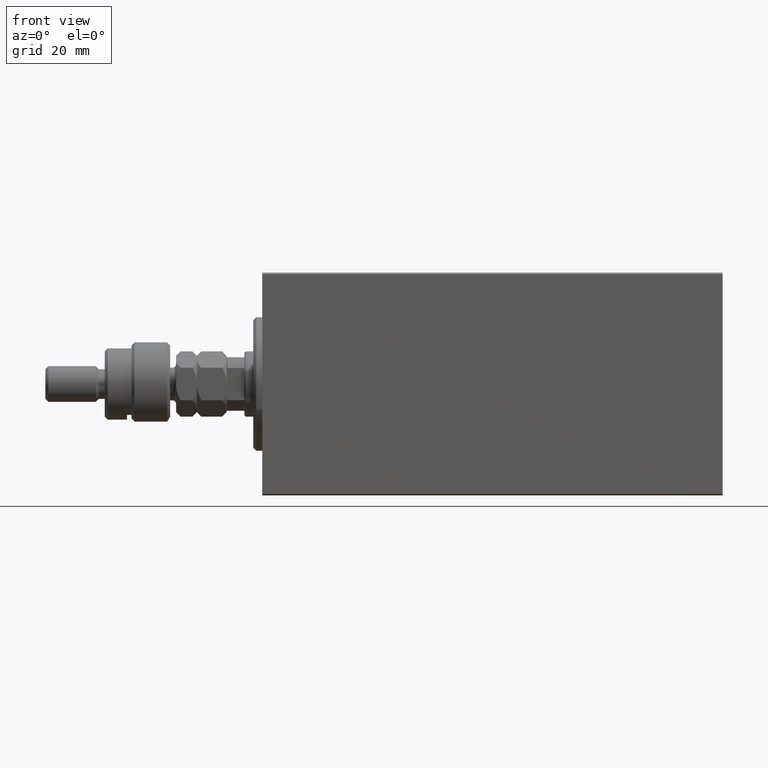
[diagram: clean part render]
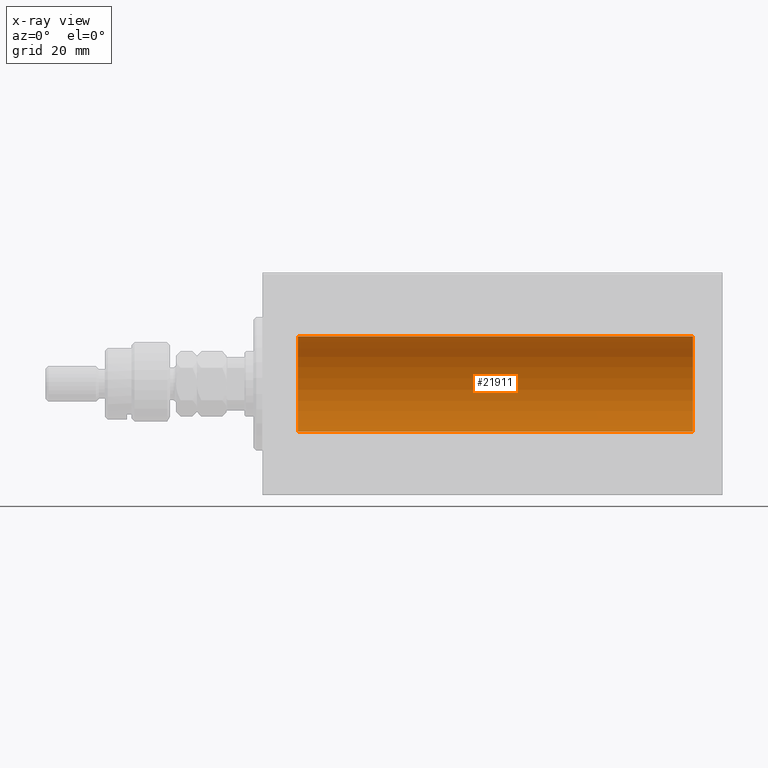
[diagram: x-ray — body ghosted, one internal face saturated and labeled with its STEP entity id]
A machine part, front view, then the same camera in x-ray: the body is ghosted and one INTERNAL B-rep face — a face not visible from any outside direction — is saturated and labeled: STEP entity #21911.
In plain terms, the highlighted cylindrical surface (partial cylindrical patch) has radius 16 mm, axis along (-1, -0, -0).
Its self-contained STEP definition (entity closure, byte-faithful):
#25 = ORIENTED_EDGE ( 'NONE', *, *, #11655, .F. ) ;
#150 = CARTESIAN_POINT ( 'NONE',  ( 145.0000000000000000, 0.000000000000000000, 0.000000000000000000 ) ) ;
#245 = VERTEX_POINT ( 'NONE', #46410 ) ;
#614 = DIRECTION ( 'NONE',  ( -1.000000000000000000, 0.000000000000000000, 0.000000000000000000 ) ) ;
#2552 = ORIENTED_EDGE ( 'NONE', *, *, #40985, .F. ) ;
#2597 = DIRECTION ( 'NONE',  ( -1.000000000000000000, -0.000000000000000000, -0.000000000000000000 ) ) ;
#3111 = DIRECTION ( 'NONE',  ( -1.000000000000000000, 0.000000000000000000, 0.000000000000000000 ) ) ;
#5412 = AXIS2_PLACEMENT_3D ( 'NONE', #10601, #3111, #6849 ) ;
#6849 = DIRECTION ( 'NONE',  ( 0.000000000000000000, 0.000000000000000000, 1.000000000000000000 ) ) ;
#7343 = ORIENTED_EDGE ( 'NONE', *, *, #15670, .T. ) ;
#7800 = DIRECTION ( 'NONE',  ( -1.000000000000000000, -0.000000000000000000, -0.000000000000000000 ) ) ;
#10601 = CARTESIAN_POINT ( 'NONE',  ( 12.00000000000001066, 0.000000000000000000, 0.000000000000000000 ) ) ;
#10925 = CARTESIAN_POINT ( 'NONE',  ( 145.0000000000000000, 0.000000000000000000, 16.00000000000000000 ) ) ;
#11655 = EDGE_CURVE ( 'NONE', #41849, #15880, #40772, .T. ) ;
#11894 = CARTESIAN_POINT ( 'NONE',  ( 12.00000000000001066, 0.000000000000000000, 16.00000000000000000 ) ) ;
#12258 = LINE ( 'NONE', #37357, #14248 ) ;
#13946 = EDGE_LOOP ( 'NONE', ( #2552, #25, #7343, #36633 ) ) ;
#14248 = VECTOR ( 'NONE', #7800, 1000.000000000000000 ) ;
#15670 = EDGE_CURVE ( 'NONE', #41849, #31632, #31215, .T. ) ;
#15880 = VERTEX_POINT ( 'NONE', #26936 ) ;
#20540 = AXIS2_PLACEMENT_3D ( 'NONE', #150, #614, #25249 ) ;
#21874 = CIRCLE ( 'NONE', #5412, 16.00000000000000000 ) ;
#21911 = ADVANCED_FACE ( 'NONE', ( #33299 ), #26015, .F. ) ;
#24392 = VECTOR ( 'NONE', #2597, 1000.000000000000000 ) ;
#25179 = AXIS2_PLACEMENT_3D ( 'NONE', #33065, #36583, #40560 ) ;
#25249 = DIRECTION ( 'NONE',  ( 0.000000000000000000, 0.000000000000000000, 1.000000000000000000 ) ) ;
#26015 = CYLINDRICAL_SURFACE ( 'NONE', #25179, 16.00000000000000000 ) ;
#26936 = CARTESIAN_POINT ( 'NONE',  ( 145.0000000000000000, 1.959434878635765131E-15, -16.00000000000000000 ) ) ;
#31215 = LINE ( 'NONE', #34743, #24392 ) ;
#31632 = VERTEX_POINT ( 'NONE', #11894 ) ;
#33065 = CARTESIAN_POINT ( 'NONE',  ( 145.0000000000000000, 0.000000000000000000, 0.000000000000000000 ) ) ;
#33299 = FACE_OUTER_BOUND ( 'NONE', #13946, .T. ) ;
#34743 = CARTESIAN_POINT ( 'NONE',  ( 145.0000000000000000, 0.000000000000000000, 16.00000000000000000 ) ) ;
#36583 = DIRECTION ( 'NONE',  ( -1.000000000000000000, -0.000000000000000000, -0.000000000000000000 ) ) ;
#36633 = ORIENTED_EDGE ( 'NONE', *, *, #37385, .T. ) ;
#37357 = CARTESIAN_POINT ( 'NONE',  ( 145.0000000000000000, 1.959434878635765131E-15, -16.00000000000000000 ) ) ;
#37385 = EDGE_CURVE ( 'NONE', #31632, #245, #21874, .T. ) ;
#40560 = DIRECTION ( 'NONE',  ( 0.000000000000000000, 0.000000000000000000, 1.000000000000000000 ) ) ;
#40772 = CIRCLE ( 'NONE', #20540, 16.00000000000000000 ) ;
#40985 = EDGE_CURVE ( 'NONE', #15880, #245, #12258, .T. ) ;
#41849 = VERTEX_POINT ( 'NONE', #10925 ) ;
#46410 = CARTESIAN_POINT ( 'NONE',  ( 12.00000000000001066, 1.959434878635765131E-15, -16.00000000000000000 ) ) ;